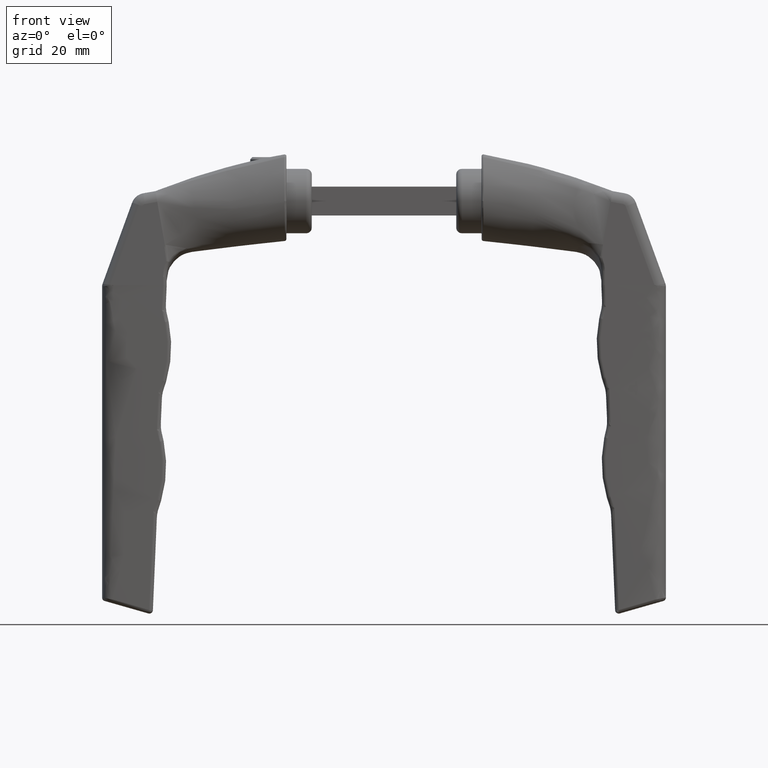
[diagram: clean part render]
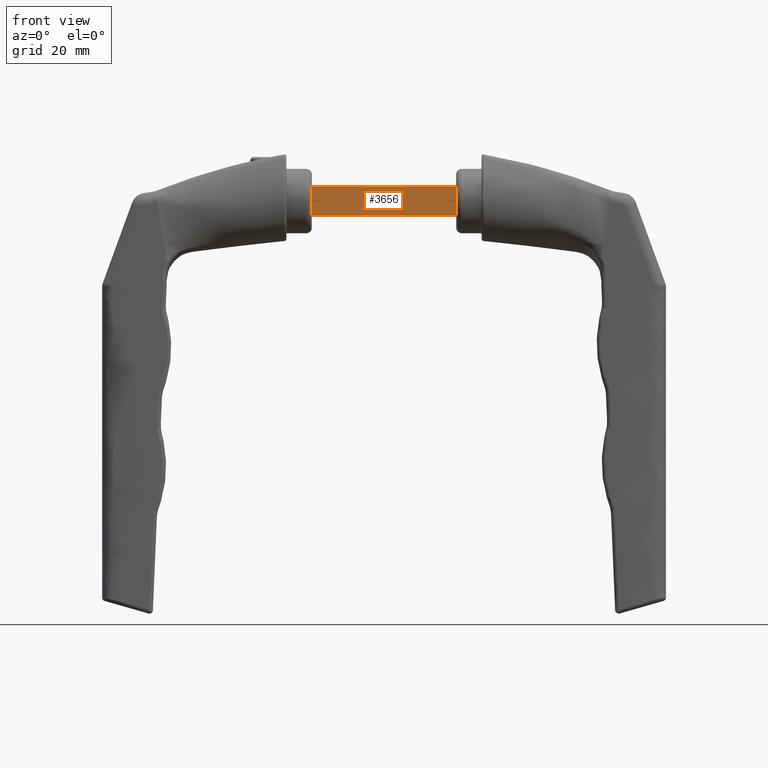
[diagram: same view with one face highlighted and labeled with its STEP entity id]
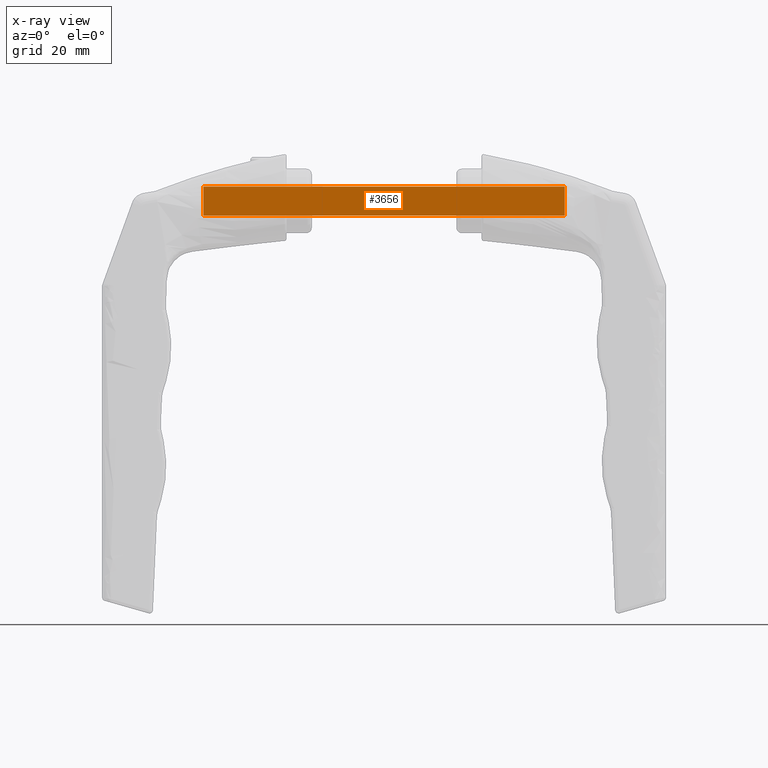
[diagram: x-ray of the same camera — body ghosted, the highlighted face saturated]
A machine part, front view. The second image highlights one B-rep face of the part: STEP entity #3656.
The next image is the same camera in x-ray: the body ghosted, the highlighted face saturated — about 0% of this face is hidden behind the body in this view.
In plain terms, the highlighted planar face has unit normal (0, 1, -0).
Its self-contained STEP definition (entity closure, byte-faithful):
#124 = VECTOR ( 'NONE', #11116, 1000.000000000000000 ) ;
#362 = DIRECTION ( 'NONE',  ( -1.000000000000000000, -2.168404344971008621E-16, 0.000000000000000000 ) ) ;
#1268 = VECTOR ( 'NONE', #2021, 1000.000000000000000 ) ;
#1983 = EDGE_CURVE ( 'NONE', #15134, #6808, #5092, .T. ) ;
#2021 = DIRECTION ( 'NONE',  ( 1.000000000000000000, 2.168404344971008868E-16, 0.000000000000000000 ) ) ;
#2101 = FACE_OUTER_BOUND ( 'NONE', #11270, .T. ) ;
#2290 = EDGE_CURVE ( 'NONE', #15474, #10840, #11754, .T. ) ;
#3656 = ADVANCED_FACE ( 'NONE', ( #2101 ), #3998, .F. ) ;
#3944 = LINE ( 'NONE', #10104, #13267 ) ;
#3998 = PLANE ( 'NONE',  #10855 ) ;
#4881 = CARTESIAN_POINT ( 'NONE',  ( 4.000000000000000000, -4.000000000000000000, -23.00000000000000355 ) ) ;
#4992 = ORIENTED_EDGE ( 'NONE', *, *, #12483, .F. ) ;
#5092 = LINE ( 'NONE', #13036, #1268 ) ;
#5245 = DIRECTION ( 'NONE',  ( 0.000000000000000000, 0.000000000000000000, -1.000000000000000000 ) ) ;
#6690 = ORIENTED_EDGE ( 'NONE', *, *, #2290, .T. ) ;
#6808 = VERTEX_POINT ( 'NONE', #15668 ) ;
#8831 = CARTESIAN_POINT ( 'NONE',  ( 4.000000000000000000, -4.000000000000000000, 77.00000000000001421 ) ) ;
#9623 = VECTOR ( 'NONE', #5245, 1000.000000000000000 ) ;
#9817 = CARTESIAN_POINT ( 'NONE',  ( -4.000000000000000000, -4.000000000000001776, -23.00000000000000355 ) ) ;
#9973 = LINE ( 'NONE', #12520, #9623 ) ;
#10104 = CARTESIAN_POINT ( 'NONE',  ( 4.000000000000000000, -4.000000000000000000, 77.00000000000001421 ) ) ;
#10840 = VERTEX_POINT ( 'NONE', #4881 ) ;
#10855 = AXIS2_PLACEMENT_3D ( 'NONE', #8831, #11162, #362 ) ;
#11116 = DIRECTION ( 'NONE',  ( 1.000000000000000000, 2.168404344971008868E-16, 0.000000000000000000 ) ) ;
#11162 = DIRECTION ( 'NONE',  ( -2.168404344971008621E-16, 1.000000000000000000, 0.000000000000000000 ) ) ;
#11270 = EDGE_LOOP ( 'NONE', ( #14745, #6690, #4992, #15772 ) ) ;
#11482 = DIRECTION ( 'NONE',  ( 0.000000000000000000, 0.000000000000000000, -1.000000000000000000 ) ) ;
#11754 = LINE ( 'NONE', #14787, #124 ) ;
#12483 = EDGE_CURVE ( 'NONE', #6808, #10840, #3944, .T. ) ;
#12520 = CARTESIAN_POINT ( 'NONE',  ( -4.000000000000000000, -4.000000000000001776, 77.00000000000001421 ) ) ;
#12685 = EDGE_CURVE ( 'NONE', #15134, #15474, #9973, .T. ) ;
#13036 = CARTESIAN_POINT ( 'NONE',  ( 4.000000000000000000, -4.000000000000000000, 77.00000000000001421 ) ) ;
#13267 = VECTOR ( 'NONE', #11482, 1000.000000000000000 ) ;
#13436 = CARTESIAN_POINT ( 'NONE',  ( -4.000000000000000000, -4.000000000000001776, 77.00000000000001421 ) ) ;
#14745 = ORIENTED_EDGE ( 'NONE', *, *, #12685, .T. ) ;
#14787 = CARTESIAN_POINT ( 'NONE',  ( 4.000000000000000000, -4.000000000000000000, -23.00000000000000355 ) ) ;
#15134 = VERTEX_POINT ( 'NONE', #13436 ) ;
#15474 = VERTEX_POINT ( 'NONE', #9817 ) ;
#15668 = CARTESIAN_POINT ( 'NONE',  ( 4.000000000000000000, -4.000000000000000000, 77.00000000000001421 ) ) ;
#15772 = ORIENTED_EDGE ( 'NONE', *, *, #1983, .F. ) ;